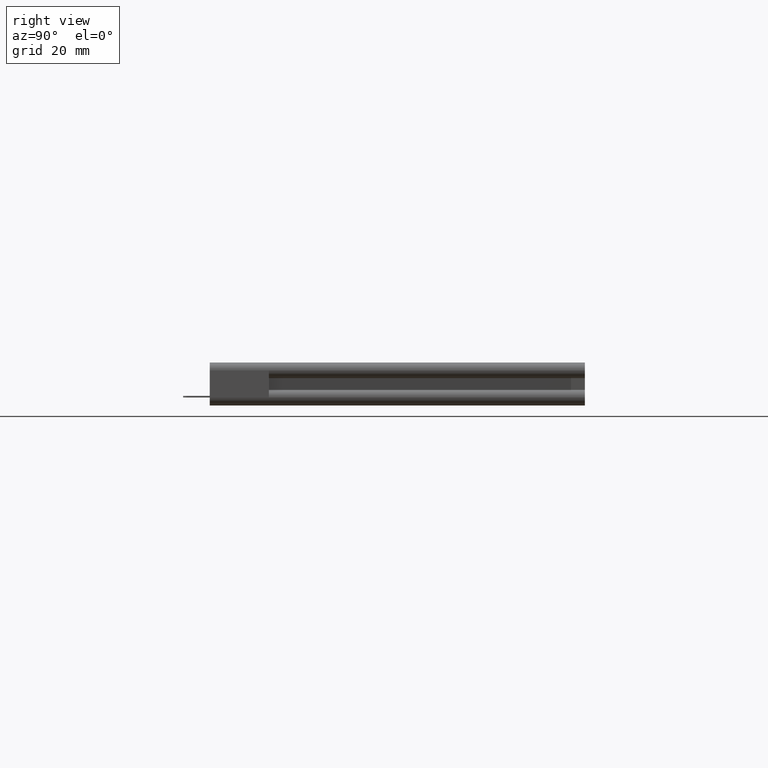
[diagram: clean part render]
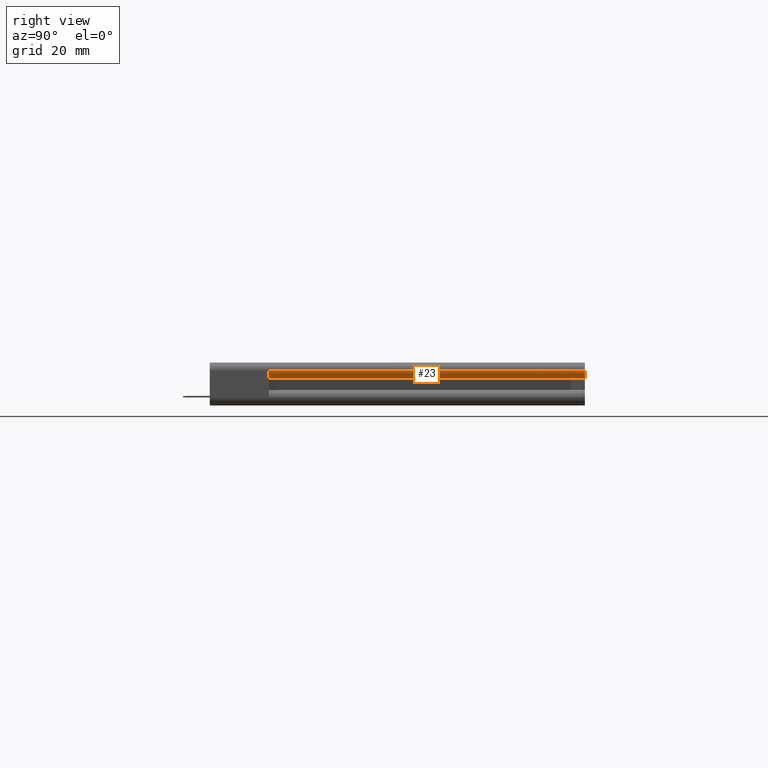
[diagram: same view with one face highlighted and labeled with its STEP entity id]
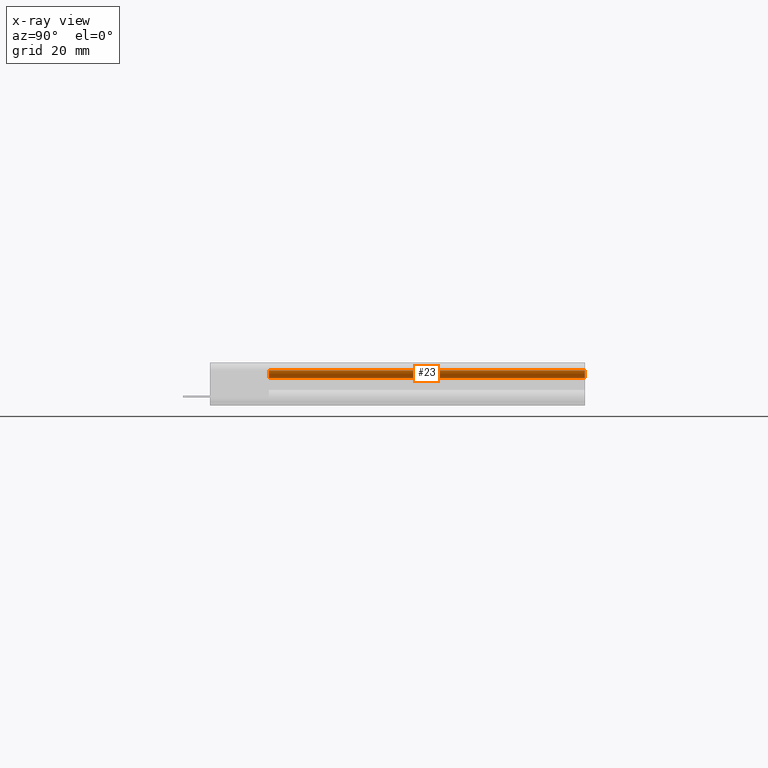
[diagram: x-ray of the same camera — body ghosted, the highlighted face saturated]
A machine part, right view. The second image highlights one B-rep face of the part: STEP entity #23.
The next image is the same camera in x-ray: the body ghosted, the highlighted face saturated — about 0% of this face is hidden behind the body in this view.
In plain terms, the highlighted cylindrical surface (edge-blend (fillet) strip) has radius 1.6256 mm, axis along (0, -1, 0).
Its self-contained STEP definition (entity closure, byte-faithful):
#23 = ADVANCED_FACE ( 'NONE', ( #17557 ), #7734, .T. ) ;
#288 = VERTEX_POINT ( 'NONE', #10058 ) ;
#3049 = VECTOR ( 'NONE', #20606, 39.37007874015748100 ) ;
#4799 = ORIENTED_EDGE ( 'NONE', *, *, #19535, .F. ) ;
#5142 = VECTOR ( 'NONE', #14650, 39.37007874015748100 ) ;
#5200 = DIRECTION ( 'NONE',  ( 0.0000000000000000000, 0.0000000000000000000, -1.000000000000000000 ) ) ;
#5237 = DIRECTION ( 'NONE',  ( 0.0000000000000000000, -1.000000000000000000, 0.0000000000000000000 ) ) ;
#5242 = CARTESIAN_POINT ( 'NONE',  ( 4.811000000000000800, 0.4729999999999994200, 0.1072947366142829200 ) ) ;
#5346 = VERTEX_POINT ( 'NONE', #22058 ) ;
#5497 = ORIENTED_EDGE ( 'NONE', *, *, #21033, .T. ) ;
#5599 = VERTEX_POINT ( 'NONE', #10153 ) ;
#6073 = ORIENTED_EDGE ( 'NONE', *, *, #6641, .F. ) ;
#6641 = EDGE_CURVE ( 'NONE', #5346, #14379, #7032, .T. ) ;
#7032 = CIRCLE ( 'NONE', #15469, 0.06400000000000000100 ) ;
#7734 = CYLINDRICAL_SURFACE ( 'NONE', #23093, 0.06400000000000000100 ) ;
#7846 = LINE ( 'NONE', #13506, #3049 ) ;
#8027 = CIRCLE ( 'NONE', #21415, 0.06400000000000000100 ) ;
#9818 = EDGE_CURVE ( 'NONE', #5599, #288, #8027, .T. ) ;
#9963 = LINE ( 'NONE', #21596, #5142 ) ;
#10058 = CARTESIAN_POINT ( 'NONE',  ( 4.875000000000000000, 0.4729999999999994200, 0.1072947366142829200 ) ) ;
#10153 = CARTESIAN_POINT ( 'NONE',  ( 4.830999999999999500, 0.4729999999999994200, 0.04650000000000000000 ) ) ;
#11426 = DIRECTION ( 'NONE',  ( 0.0000000000000000000, 0.0000000000000000000, -1.000000000000000000 ) ) ;
#11445 = DIRECTION ( 'NONE',  ( -0.0000000000000000000, 1.000000000000000000, -0.0000000000000000000 ) ) ;
#11470 = CARTESIAN_POINT ( 'NONE',  ( 4.811000000000000800, 3.000000000000000400, 0.1072947366142829200 ) ) ;
#13185 = CARTESIAN_POINT ( 'NONE',  ( 4.811000000000000800, 0.3701165708192027900, 0.1072947366142829200 ) ) ;
#13506 = CARTESIAN_POINT ( 'NONE',  ( 4.830999999999999500, 0.3701165708192027900, 0.04650000000000000000 ) ) ;
#13999 = DIRECTION ( 'NONE',  ( 0.0000000000000000000, 0.0000000000000000000, -1.000000000000000000 ) ) ;
#14379 = VERTEX_POINT ( 'NONE', #16527 ) ;
#14650 = DIRECTION ( 'NONE',  ( -0.0000000000000000000, 1.000000000000000000, -0.0000000000000000000 ) ) ;
#15469 = AXIS2_PLACEMENT_3D ( 'NONE', #11470, #11445, #11426 ) ;
#16527 = CARTESIAN_POINT ( 'NONE',  ( 4.830999999999999500, 3.000000000000000400, 0.04650000000000000000 ) ) ;
#16738 = ORIENTED_EDGE ( 'NONE', *, *, #9818, .F. ) ;
#17099 = DIRECTION ( 'NONE',  ( 0.0000000000000000000, -1.000000000000000000, 0.0000000000000000000 ) ) ;
#17557 = FACE_OUTER_BOUND ( 'NONE', #22912, .T. ) ;
#19535 = EDGE_CURVE ( 'NONE', #288, #5346, #9963, .T. ) ;
#20606 = DIRECTION ( 'NONE',  ( -0.0000000000000000000, 1.000000000000000000, -0.0000000000000000000 ) ) ;
#21033 = EDGE_CURVE ( 'NONE', #5599, #14379, #7846, .T. ) ;
#21415 = AXIS2_PLACEMENT_3D ( 'NONE', #5242, #5237, #5200 ) ;
#21596 = CARTESIAN_POINT ( 'NONE',  ( 4.875000000000000900, 0.0000000000000000000, 0.1072947366142829200 ) ) ;
#22058 = CARTESIAN_POINT ( 'NONE',  ( 4.875000000000000900, 3.000000000000000400, 0.1072947366142829200 ) ) ;
#22912 = EDGE_LOOP ( 'NONE', ( #16738, #5497, #6073, #4799 ) ) ;
#23093 = AXIS2_PLACEMENT_3D ( 'NONE', #13185, #17099, #13999 ) ;